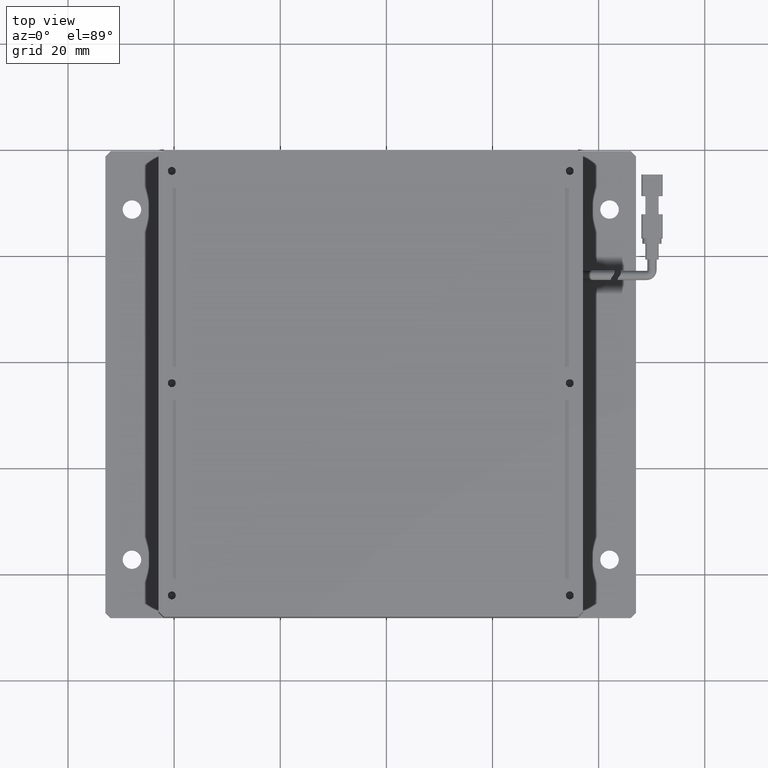
[diagram: clean part render]
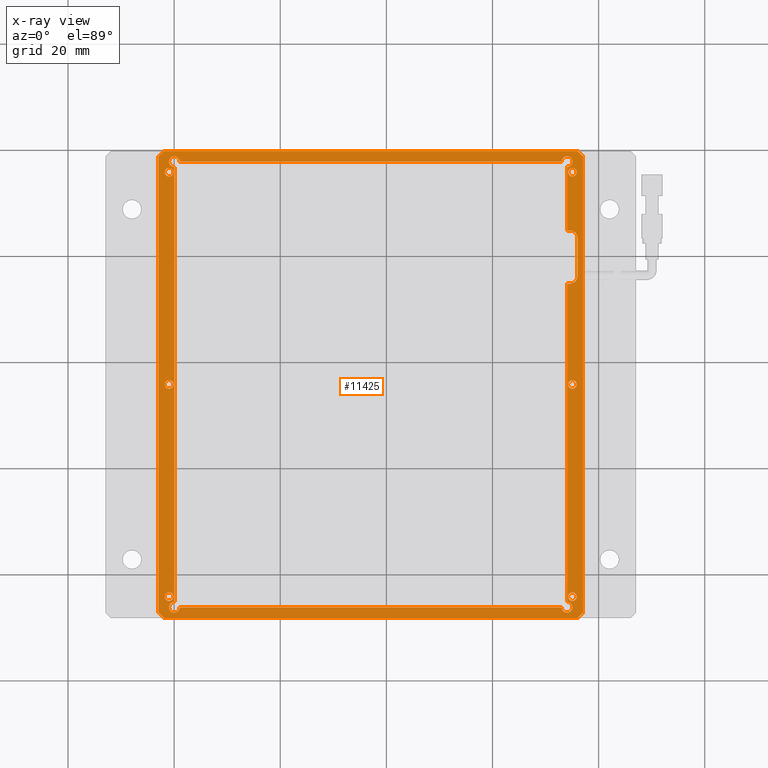
[diagram: x-ray — body ghosted, one internal face saturated and labeled with its STEP entity id]
A machine part, top view, then the same camera in x-ray: the body is ghosted and one INTERNAL B-rep face — a face not visible from any outside direction — is saturated and labeled: STEP entity #11425.
In plain terms, the highlighted planar face has unit normal (0, 0, -1).
Its self-contained STEP definition (entity closure, byte-faithful):
#14 = ORIENTED_EDGE ( 'NONE', *, *, #10379, .T. ) ;
#94 = CIRCLE ( 'NONE', #3871, 0.7999999999999986000 ) ;
#96 = CARTESIAN_POINT ( 'NONE',  ( 55.05231004200074800, -44.20007636502477800, -4.547577592273199800E-012 ) ) ;
#98 = CARTESIAN_POINT ( 'NONE',  ( -21.74768995799924600, 35.79992363497524400, -4.547577592273199800E-012 ) ) ;
#155 = DIRECTION ( 'NONE',  ( 0.0000000000000000000, 0.0000000000000000000, 1.000000000000000000 ) ) ;
#158 = LINE ( 'NONE', #10646, #7629 ) ;
#179 = DIRECTION ( 'NONE',  ( -1.000000000000000000, 0.0000000000000000000, 0.0000000000000000000 ) ) ;
#280 = CIRCLE ( 'NONE', #12288, 0.7999999999999951600 ) ;
#333 = CARTESIAN_POINT ( 'NONE',  ( 55.05231004200074800, -4.200076365024778500, -4.547577592273199800E-012 ) ) ;
#343 = DIRECTION ( 'NONE',  ( 0.7071067811865408000, 0.7071067811865541200, 0.0000000000000000000 ) ) ;
#379 = AXIS2_PLACEMENT_3D ( 'NONE', #957, #10678, #2328 ) ;
#569 = LINE ( 'NONE', #771, #7595 ) ;
#597 = CIRCLE ( 'NONE', #8011, 0.7999999999999951600 ) ;
#637 = ORIENTED_EDGE ( 'NONE', *, *, #7522, .T. ) ;
#669 = DIRECTION ( 'NONE',  ( 1.000000000000000000, -0.0000000000000000000, 0.0000000000000000000 ) ) ;
#771 = CARTESIAN_POINT ( 'NONE',  ( -22.94768995799925900, 38.79992363497520100, -4.547577592273199800E-012 ) ) ;
#795 = VERTEX_POINT ( 'NONE', #3649 ) ;
#809 = DIRECTION ( 'NONE',  ( 0.0000000000000000000, 0.0000000000000000000, 1.000000000000000000 ) ) ;
#957 = CARTESIAN_POINT ( 'NONE',  ( -19.94768995799928700, 37.79992363497522900, -4.547577592273199800E-012 ) ) ;
#1077 = VERTEX_POINT ( 'NONE', #6745 ) ;
#1086 = ORIENTED_EDGE ( 'NONE', *, *, #16838, .T. ) ;
#1122 = CARTESIAN_POINT ( 'NONE',  ( -20.94768995799928700, 37.79992363497522900, -4.547577592273199800E-012 ) ) ;
#1123 = EDGE_CURVE ( 'NONE', #4842, #17763, #94, .T. ) ;
#1268 = CARTESIAN_POINT ( 'NONE',  ( 53.05231004200079100, -46.20007636502479200, -4.547577592273199800E-012 ) ) ;
#1269 = AXIS2_PLACEMENT_3D ( 'NONE', #96, #155, #179 ) ;
#1364 = EDGE_LOOP ( 'NONE', ( #1550, #5323, #17077, #14568, #10162, #6193, #4690, #6588, #5433, #6382, #13417, #11874, #15836, #637, #3973, #8566 ) ) ;
#1404 = CIRCLE ( 'NONE', #379, 0.9999999999999974500 ) ;
#1550 = ORIENTED_EDGE ( 'NONE', *, *, #14940, .T. ) ;
#1555 = ORIENTED_EDGE ( 'NONE', *, *, #14249, .T. ) ;
#1579 = VERTEX_POINT ( 'NONE', #6132 ) ;
#1594 = VERTEX_POINT ( 'NONE', #1268 ) ;
#1614 = AXIS2_PLACEMENT_3D ( 'NONE', #11526, #3283, #12854 ) ;
#1774 = DIRECTION ( 'NONE',  ( -1.000000000000000000, 0.0000000000000000000, 0.0000000000000000000 ) ) ;
#1808 = VERTEX_POINT ( 'NONE', #10549 ) ;
#1861 = CARTESIAN_POINT ( 'NONE',  ( 54.05231004200079100, 14.79992363497521200, -4.547577592273199800E-012 ) ) ;
#1882 = VECTOR ( 'NONE', #13733, 1000.000000000000000 ) ;
#1919 = EDGE_LOOP ( 'NONE', ( #1555, #14 ) ) ;
#1977 = CIRCLE ( 'NONE', #2837, 0.9999999999999974500 ) ;
#2003 = DIRECTION ( 'NONE',  ( -0.0000000000000000000, -1.000000000000000000, 0.0000000000000000000 ) ) ;
#2024 = CARTESIAN_POINT ( 'NONE',  ( 55.05231004200074800, 35.79992363497521500, -4.547577592273199800E-012 ) ) ;
#2083 = DIRECTION ( 'NONE',  ( -1.000000000000000000, 0.0000000000000000000, 0.0000000000000000000 ) ) ;
#2097 = DIRECTION ( 'NONE',  ( 0.0000000000000000000, 0.0000000000000000000, 1.000000000000000000 ) ) ;
#2135 = CARTESIAN_POINT ( 'NONE',  ( -20.94768995799924800, -44.20007636502477800, -4.547577592273199800E-012 ) ) ;
#2169 = VECTOR ( 'NONE', #8421, 1000.000000000000100 ) ;
#2207 = EDGE_CURVE ( 'NONE', #9410, #1808, #10492, .T. ) ;
#2328 = DIRECTION ( 'NONE',  ( -1.000000000000000000, 0.0000000000000000000, 0.0000000000000000000 ) ) ;
#2404 = ORIENTED_EDGE ( 'NONE', *, *, #6658, .T. ) ;
#2795 = EDGE_CURVE ( 'NONE', #8313, #3058, #11244, .T. ) ;
#2802 = FACE_BOUND ( 'NONE', #13784, .T. ) ;
#2837 = AXIS2_PLACEMENT_3D ( 'NONE', #7095, #16577, #8470 ) ;
#2911 = CARTESIAN_POINT ( 'NONE',  ( 53.05231004200079100, 37.79992363497522900, -4.547577592273199800E-012 ) ) ;
#2936 = ORIENTED_EDGE ( 'NONE', *, *, #2207, .T. ) ;
#2984 = CARTESIAN_POINT ( 'NONE',  ( -20.14768995799924800, -44.20007636502477800, -4.547577592273199800E-012 ) ) ;
#2987 = EDGE_CURVE ( 'NONE', #4050, #3069, #17305, .T. ) ;
#3058 = VERTEX_POINT ( 'NONE', #16810 ) ;
#3069 = VERTEX_POINT ( 'NONE', #17035 ) ;
#3100 = ORIENTED_EDGE ( 'NONE', *, *, #4835, .T. ) ;
#3217 = CARTESIAN_POINT ( 'NONE',  ( -22.94768995799924500, -47.20007636502478500, -4.550179677487165000E-012 ) ) ;
#3283 = DIRECTION ( 'NONE',  ( 0.0000000000000000000, 0.0000000000000000000, 1.000000000000000000 ) ) ;
#3346 = VERTEX_POINT ( 'NONE', #16251 ) ;
#3395 = CARTESIAN_POINT ( 'NONE',  ( 54.55231004200074800, 16.29992363497521200, -4.547577592273199800E-012 ) ) ;
#3458 = DIRECTION ( 'NONE',  ( -1.000000000000000000, 0.0000000000000000000, 0.0000000000000000000 ) ) ;
#3495 = CARTESIAN_POINT ( 'NONE',  ( -22.94768995799924800, 39.79992363497522200, -4.547577592273199800E-012 ) ) ;
#3613 = LINE ( 'NONE', #9299, #17672 ) ;
#3649 = CARTESIAN_POINT ( 'NONE',  ( 54.25231004200075800, 35.79992363497521500, -4.547577592273199800E-012 ) ) ;
#3671 = VECTOR ( 'NONE', #16054, 1000.000000000000000 ) ;
#3711 = CARTESIAN_POINT ( 'NONE',  ( 56.05231004200074800, 23.29992363497523300, -4.547577592273199800E-012 ) ) ;
#3751 = CARTESIAN_POINT ( 'NONE',  ( 54.05231004200079100, 36.79992363497522900, -4.547577592273199800E-012 ) ) ;
#3871 = AXIS2_PLACEMENT_3D ( 'NONE', #10608, #10732, #10867 ) ;
#3888 = AXIS2_PLACEMENT_3D ( 'NONE', #5314, #14778, #6672 ) ;
#3973 = ORIENTED_EDGE ( 'NONE', *, *, #16128, .T. ) ;
#4050 = VERTEX_POINT ( 'NONE', #3217 ) ;
#4097 = CARTESIAN_POINT ( 'NONE',  ( -21.74768995799924600, -44.20007636502477800, -4.547577592273199800E-012 ) ) ;
#4202 = DIRECTION ( 'NONE',  ( -0.7071067811865474600, 0.7071067811865474600, 0.0000000000000000000 ) ) ;
#4309 = ORIENTED_EDGE ( 'NONE', *, *, #2987, .T. ) ;
#4341 = EDGE_CURVE ( 'NONE', #1579, #14352, #158, .T. ) ;
#4468 = CARTESIAN_POINT ( 'NONE',  ( 55.05231004200074800, -44.20007636502477800, -4.547577592273199800E-012 ) ) ;
#4592 = CIRCLE ( 'NONE', #8174, 0.7999999999999986000 ) ;
#4636 = ORIENTED_EDGE ( 'NONE', *, *, #15336, .T. ) ;
#4647 = ORIENTED_EDGE ( 'NONE', *, *, #16264, .T. ) ;
#4652 = CARTESIAN_POINT ( 'NONE',  ( -21.74768995799924600, -4.200076365024778500, -4.547577592273199800E-012 ) ) ;
#4676 = VERTEX_POINT ( 'NONE', #3751 ) ;
#4690 = ORIENTED_EDGE ( 'NONE', *, *, #9516, .T. ) ;
#4738 = EDGE_CURVE ( 'NONE', #15070, #11116, #4592, .T. ) ;
#4752 = CIRCLE ( 'NONE', #17131, 0.9999999999999974500 ) ;
#4792 = DIRECTION ( 'NONE',  ( 0.0000000000000000000, 1.000000000000000000, 0.0000000000000000000 ) ) ;
#4830 = DIRECTION ( 'NONE',  ( 1.000000000000000000, 0.0000000000000000000, 0.0000000000000000000 ) ) ;
#4835 = EDGE_CURVE ( 'NONE', #3069, #12722, #569, .T. ) ;
#4842 = VERTEX_POINT ( 'NONE', #98 ) ;
#4881 = VECTOR ( 'NONE', #7822, 1000.000000000000000 ) ;
#4904 = VERTEX_POINT ( 'NONE', #8523 ) ;
#4907 = LINE ( 'NONE', #15831, #5377 ) ;
#4934 = DIRECTION ( 'NONE',  ( -1.000000000000000000, 0.0000000000000000000, -0.0000000000000000000 ) ) ;
#5029 = EDGE_CURVE ( 'NONE', #6687, #6999, #14146, .T. ) ;
#5046 = EDGE_CURVE ( 'NONE', #6168, #16969, #5235, .T. ) ;
#5052 = CARTESIAN_POINT ( 'NONE',  ( -20.94768995799924800, 35.79992363497524400, -4.547577592273199800E-012 ) ) ;
#5090 = EDGE_CURVE ( 'NONE', #4676, #6948, #10347, .T. ) ;
#5204 = CARTESIAN_POINT ( 'NONE',  ( -20.94768995799924800, -44.20007636502477800, -4.547577592273199800E-012 ) ) ;
#5235 = LINE ( 'NONE', #14015, #1882 ) ;
#5314 = CARTESIAN_POINT ( 'NONE',  ( 55.05231004200074800, 35.79992363497521500, -4.547577592273199800E-012 ) ) ;
#5323 = ORIENTED_EDGE ( 'NONE', *, *, #2795, .T. ) ;
#5377 = VECTOR ( 'NONE', #9090, 1000.000000000000000 ) ;
#5433 = ORIENTED_EDGE ( 'NONE', *, *, #5623, .T. ) ;
#5576 = ORIENTED_EDGE ( 'NONE', *, *, #5029, .T. ) ;
#5623 = EDGE_CURVE ( 'NONE', #6609, #12134, #3613, .T. ) ;
#5820 = DIRECTION ( 'NONE',  ( -1.000000000000000000, 0.0000000000000000000, -0.0000000000000000000 ) ) ;
#5871 = DIRECTION ( 'NONE',  ( -1.000000000000000000, 0.0000000000000000000, 0.0000000000000000000 ) ) ;
#6063 = CARTESIAN_POINT ( 'NONE',  ( 56.05231004200076200, 39.79992363497522200, -4.548878634880182400E-012 ) ) ;
#6096 = CIRCLE ( 'NONE', #16219, 1.500000000000001300 ) ;
#6112 = FACE_BOUND ( 'NONE', #1364, .T. ) ;
#6132 = CARTESIAN_POINT ( 'NONE',  ( 54.05231004200079100, -45.20007636502478500, -4.547577592273199800E-012 ) ) ;
#6168 = VERTEX_POINT ( 'NONE', #17453 ) ;
#6193 = ORIENTED_EDGE ( 'NONE', *, *, #4341, .T. ) ;
#6234 = VECTOR ( 'NONE', #669, 1000.000000000000000 ) ;
#6293 = VERTEX_POINT ( 'NONE', #16385 ) ;
#6338 = ORIENTED_EDGE ( 'NONE', *, *, #15430, .T. ) ;
#6352 = VECTOR ( 'NONE', #4202, 1000.000000000000100 ) ;
#6382 = ORIENTED_EDGE ( 'NONE', *, *, #14258, .T. ) ;
#6423 = DIRECTION ( 'NONE',  ( -1.000000000000000000, 0.0000000000000000000, 0.0000000000000000000 ) ) ;
#6551 = FACE_BOUND ( 'NONE', #10581, .T. ) ;
#6569 = DIRECTION ( 'NONE',  ( -1.000000000000000000, 0.0000000000000000000, 0.0000000000000000000 ) ) ;
#6588 = ORIENTED_EDGE ( 'NONE', *, *, #7706, .T. ) ;
#6609 = VERTEX_POINT ( 'NONE', #13134 ) ;
#6658 = EDGE_CURVE ( 'NONE', #13119, #6687, #15313, .T. ) ;
#6672 = DIRECTION ( 'NONE',  ( -1.000000000000000000, 0.0000000000000000000, 0.0000000000000000000 ) ) ;
#6687 = VERTEX_POINT ( 'NONE', #10563 ) ;
#6708 = DIRECTION ( 'NONE',  ( 0.0000000000000000000, 0.0000000000000000000, 1.000000000000000000 ) ) ;
#6745 = CARTESIAN_POINT ( 'NONE',  ( -18.94768995799928700, 37.79992363497524400, -4.547577592273199800E-012 ) ) ;
#6948 = VERTEX_POINT ( 'NONE', #2911 ) ;
#6953 = DIRECTION ( 'NONE',  ( 0.0000000000000000000, 0.0000000000000000000, 1.000000000000000000 ) ) ;
#6996 = FACE_OUTER_BOUND ( 'NONE', #12720, .T. ) ;
#6999 = VERTEX_POINT ( 'NONE', #13967 ) ;
#7040 = CARTESIAN_POINT ( 'NONE',  ( -20.94768995799924800, -4.200076365024778500, -4.547577592273199800E-012 ) ) ;
#7075 = VERTEX_POINT ( 'NONE', #6063 ) ;
#7095 = CARTESIAN_POINT ( 'NONE',  ( -19.94768995799928700, -46.20007636502478500, -4.547577592273199800E-012 ) ) ;
#7113 = EDGE_CURVE ( 'NONE', #16969, #4676, #7874, .T. ) ;
#7421 = LINE ( 'NONE', #17614, #16115 ) ;
#7440 = CIRCLE ( 'NONE', #17581, 0.7999999999999951600 ) ;
#7442 = CARTESIAN_POINT ( 'NONE',  ( 55.05231004200074800, -4.200076365024778500, -4.547577592273199800E-012 ) ) ;
#7522 = EDGE_CURVE ( 'NONE', #6948, #1077, #14388, .T. ) ;
#7595 = VECTOR ( 'NONE', #343, 1000.000000000000100 ) ;
#7629 = VECTOR ( 'NONE', #9425, 1000.000000000000000 ) ;
#7638 = ORIENTED_EDGE ( 'NONE', *, *, #10247, .T. ) ;
#7706 = EDGE_CURVE ( 'NONE', #17366, #6609, #6096, .T. ) ;
#7822 = DIRECTION ( 'NONE',  ( -0.7071067811865524600, -0.7071067811865426900, 0.0000000000000000000 ) ) ;
#7874 = LINE ( 'NONE', #14305, #11085 ) ;
#8011 = AXIS2_PLACEMENT_3D ( 'NONE', #2024, #11707, #3458 ) ;
#8150 = EDGE_CURVE ( 'NONE', #15472, #16324, #12836, .T. ) ;
#8174 = AXIS2_PLACEMENT_3D ( 'NONE', #2135, #2097, #2083 ) ;
#8313 = VERTEX_POINT ( 'NONE', #8689 ) ;
#8407 = DIRECTION ( 'NONE',  ( -1.000000000000000000, 0.0000000000000000000, 0.0000000000000000000 ) ) ;
#8421 = DIRECTION ( 'NONE',  ( 0.7071067811865474600, -0.7071067811865474600, 0.0000000000000000000 ) ) ;
#8470 = DIRECTION ( 'NONE',  ( -1.000000000000000000, 0.0000000000000000000, 0.0000000000000000000 ) ) ;
#8523 = CARTESIAN_POINT ( 'NONE',  ( 57.05231004200075500, 38.79992363497521500, -4.550179677487165000E-012 ) ) ;
#8566 = ORIENTED_EDGE ( 'NONE', *, *, #13158, .T. ) ;
#8608 = CARTESIAN_POINT ( 'NONE',  ( -19.94768995799928700, -46.20007636502478500, -4.547577592273199800E-012 ) ) ;
#8620 = ORIENTED_EDGE ( 'NONE', *, *, #17701, .T. ) ;
#8667 = DIRECTION ( 'NONE',  ( 0.0000000000000000000, 0.0000000000000000000, 1.000000000000000000 ) ) ;
#8689 = CARTESIAN_POINT ( 'NONE',  ( -19.94768995799928700, -45.20007636502478500, -4.547577592273199800E-012 ) ) ;
#8737 = AXIS2_PLACEMENT_3D ( 'NONE', #14816, #6708, #16209 ) ;
#8754 = CIRCLE ( 'NONE', #17535, 0.7999999999999951600 ) ;
#8795 = DIRECTION ( 'NONE',  ( -1.000000000000000000, 0.0000000000000000000, 0.0000000000000000000 ) ) ;
#8982 = EDGE_CURVE ( 'NONE', #16604, #1594, #9893, .T. ) ;
#9014 = DIRECTION ( 'NONE',  ( -1.000000000000000000, 0.0000000000000000000, 0.0000000000000000000 ) ) ;
#9055 = CARTESIAN_POINT ( 'NONE',  ( 57.05231004200074100, -47.20007636502480600, -4.548228113576691100E-012 ) ) ;
#9083 = VERTEX_POINT ( 'NONE', #13193 ) ;
#9090 = DIRECTION ( 'NONE',  ( 1.000000000000000000, 0.0000000000000000000, 0.0000000000000000000 ) ) ;
#9093 = CARTESIAN_POINT ( 'NONE',  ( -20.14768995799924800, 35.79992363497524400, -4.547577592273199800E-012 ) ) ;
#9158 = CARTESIAN_POINT ( 'NONE',  ( -20.94768995799924800, -4.200076365024778500, -4.547577592273199800E-012 ) ) ;
#9210 = AXIS2_PLACEMENT_3D ( 'NONE', #8608, #8667, #9014 ) ;
#9299 = CARTESIAN_POINT ( 'NONE',  ( 56.05231004200074800, 39.79992363497522200, -4.547577592273199800E-012 ) ) ;
#9410 = VERTEX_POINT ( 'NONE', #12906 ) ;
#9425 = DIRECTION ( 'NONE',  ( 0.0000000000000000000, 1.000000000000000000, 0.0000000000000000000 ) ) ;
#9516 = EDGE_CURVE ( 'NONE', #14352, #17366, #4907, .T. ) ;
#9649 = CARTESIAN_POINT ( 'NONE',  ( -19.94768995799928700, 36.79992363497522900, -4.547577592273199800E-012 ) ) ;
#9767 = FACE_BOUND ( 'NONE', #11100, .T. ) ;
#9889 = CARTESIAN_POINT ( 'NONE',  ( -22.94768995799924800, 37.79992363497522900, -4.547577592273199800E-012 ) ) ;
#9893 = LINE ( 'NONE', #17095, #6234 ) ;
#10082 = DIRECTION ( 'NONE',  ( 0.0000000000000000000, 0.0000000000000000000, 1.000000000000000000 ) ) ;
#10162 = ORIENTED_EDGE ( 'NONE', *, *, #14509, .T. ) ;
#10174 = AXIS2_PLACEMENT_3D ( 'NONE', #5204, #14677, #6569 ) ;
#10186 = VECTOR ( 'NONE', #2003, 1000.000000000000000 ) ;
#10230 = AXIS2_PLACEMENT_3D ( 'NONE', #11209, #11180, #11163 ) ;
#10243 = EDGE_CURVE ( 'NONE', #6999, #4050, #16747, .T. ) ;
#10247 = EDGE_CURVE ( 'NONE', #7075, #4904, #13143, .T. ) ;
#10256 = LINE ( 'NONE', #17201, #17402 ) ;
#10347 = CIRCLE ( 'NONE', #10230, 1.000000000000000900 ) ;
#10375 = VECTOR ( 'NONE', #5820, 1000.000000000000000 ) ;
#10379 = EDGE_CURVE ( 'NONE', #9083, #3346, #7440, .T. ) ;
#10492 = CIRCLE ( 'NONE', #1269, 0.7999999999999951600 ) ;
#10524 = DIRECTION ( 'NONE',  ( -1.000000000000000000, 0.0000000000000000000, 0.0000000000000000000 ) ) ;
#10549 = CARTESIAN_POINT ( 'NONE',  ( 54.25231004200075800, -44.20007636502477800, -4.547577592273199800E-012 ) ) ;
#10563 = CARTESIAN_POINT ( 'NONE',  ( 56.05231004200073400, -48.20007636502477800, -4.550179677487165000E-012 ) ) ;
#10581 = EDGE_LOOP ( 'NONE', ( #15225, #15025 ) ) ;
#10608 = CARTESIAN_POINT ( 'NONE',  ( -20.94768995799924800, 35.79992363497524400, -4.547577592273199800E-012 ) ) ;
#10646 = CARTESIAN_POINT ( 'NONE',  ( 54.05231004200079100, 39.79992363497522200, -4.547577592273199800E-012 ) ) ;
#10675 = DIRECTION ( 'NONE',  ( 0.0000000000000000000, 1.000000000000000000, 0.0000000000000000000 ) ) ;
#10678 = DIRECTION ( 'NONE',  ( 0.0000000000000000000, 0.0000000000000000000, 1.000000000000000000 ) ) ;
#10732 = DIRECTION ( 'NONE',  ( 0.0000000000000000000, 0.0000000000000000000, 1.000000000000000000 ) ) ;
#10837 = CIRCLE ( 'NONE', #11588, 0.7999999999999986000 ) ;
#10867 = DIRECTION ( 'NONE',  ( -1.000000000000000000, 0.0000000000000000000, 0.0000000000000000000 ) ) ;
#10872 = CARTESIAN_POINT ( 'NONE',  ( -20.14768995799924800, -4.200076365024778500, -4.547577592273199800E-012 ) ) ;
#10998 = CARTESIAN_POINT ( 'NONE',  ( -21.94768995799926300, 39.79992363497522200, -4.550179677487165000E-012 ) ) ;
#11014 = ORIENTED_EDGE ( 'NONE', *, *, #4738, .T. ) ;
#11076 = VERTEX_POINT ( 'NONE', #1122 ) ;
#11085 = VECTOR ( 'NONE', #4792, 1000.000000000000000 ) ;
#11100 = EDGE_LOOP ( 'NONE', ( #6338, #8620 ) ) ;
#11116 = VERTEX_POINT ( 'NONE', #4097 ) ;
#11139 = VERTEX_POINT ( 'NONE', #9649 ) ;
#11163 = DIRECTION ( 'NONE',  ( -1.000000000000000000, 0.0000000000000000000, 0.0000000000000000000 ) ) ;
#11180 = DIRECTION ( 'NONE',  ( 0.0000000000000000000, 0.0000000000000000000, 1.000000000000000000 ) ) ;
#11209 = CARTESIAN_POINT ( 'NONE',  ( 54.05231004200079100, 37.79992363497522900, -4.547577592273199800E-012 ) ) ;
#11244 = CIRCLE ( 'NONE', #9210, 0.9999999999999974500 ) ;
#11423 = EDGE_CURVE ( 'NONE', #4904, #13119, #17330, .T. ) ;
#11425 = ADVANCED_FACE ( 'NONE', ( #6996, #13777, #6551, #2802, #16920, #13325, #9767, #6112 ), #11613, .T. ) ;
#11492 = CIRCLE ( 'NONE', #8737, 1.000000000000000900 ) ;
#11526 = CARTESIAN_POINT ( 'NONE',  ( 54.55231004200074800, 23.29992363497523300, -4.547577592273199800E-012 ) ) ;
#11588 = AXIS2_PLACEMENT_3D ( 'NONE', #5052, #14543, #6423 ) ;
#11613 = PLANE ( 'NONE',  #12198 ) ;
#11707 = DIRECTION ( 'NONE',  ( 0.0000000000000000000, 0.0000000000000000000, 1.000000000000000000 ) ) ;
#11874 = ORIENTED_EDGE ( 'NONE', *, *, #7113, .T. ) ;
#12134 = VERTEX_POINT ( 'NONE', #3711 ) ;
#12145 = CARTESIAN_POINT ( 'NONE',  ( 54.05231004200079100, 24.79992363497521900, -4.547577592273199800E-012 ) ) ;
#12198 = AXIS2_PLACEMENT_3D ( 'NONE', #3495, #13059, #4934 ) ;
#12269 = DIRECTION ( 'NONE',  ( -0.0000000000000000000, -1.000000000000000000, -0.0000000000000000000 ) ) ;
#12288 = AXIS2_PLACEMENT_3D ( 'NONE', #4468, #13992, #5871 ) ;
#12343 = AXIS2_PLACEMENT_3D ( 'NONE', #7040, #16511, #8407 ) ;
#12356 = CIRCLE ( 'NONE', #1614, 1.500000000000001300 ) ;
#12431 = CARTESIAN_POINT ( 'NONE',  ( -21.94768995799924800, -48.20007636502477800, -4.547577592273199800E-012 ) ) ;
#12555 = EDGE_CURVE ( 'NONE', #11116, #15070, #13494, .T. ) ;
#12570 = AXIS2_PLACEMENT_3D ( 'NONE', #9158, #809, #10524 ) ;
#12580 = CIRCLE ( 'NONE', #12570, 0.7999999999999986000 ) ;
#12720 = EDGE_LOOP ( 'NONE', ( #5576, #16369, #4309, #3100, #1086, #7638, #13915, #2404 ) ) ;
#12722 = VERTEX_POINT ( 'NONE', #10998 ) ;
#12836 = CIRCLE ( 'NONE', #12343, 0.7999999999999986000 ) ;
#12854 = DIRECTION ( 'NONE',  ( 1.000000000000000000, 0.0000000000000000000, 0.0000000000000000000 ) ) ;
#12906 = CARTESIAN_POINT ( 'NONE',  ( 55.85231004200074500, -44.20007636502477800, -4.547577592273199800E-012 ) ) ;
#12964 = DIRECTION ( 'NONE',  ( 0.0000000000000000000, 0.0000000000000000000, 1.000000000000000000 ) ) ;
#13059 = DIRECTION ( 'NONE',  ( 0.0000000000000000000, 0.0000000000000000000, -1.000000000000000000 ) ) ;
#13119 = VERTEX_POINT ( 'NONE', #9055 ) ;
#13123 = DIRECTION ( 'NONE',  ( 1.000000000000000000, 0.0000000000000000000, 0.0000000000000000000 ) ) ;
#13134 = CARTESIAN_POINT ( 'NONE',  ( 56.05231004200074800, 16.29992363497521200, -4.547577592273199800E-012 ) ) ;
#13143 = LINE ( 'NONE', #15162, #2169 ) ;
#13158 = EDGE_CURVE ( 'NONE', #11076, #11139, #1404, .T. ) ;
#13173 = EDGE_LOOP ( 'NONE', ( #13814, #11014 ) ) ;
#13193 = CARTESIAN_POINT ( 'NONE',  ( 55.85231004200074500, -4.200076365024778500, -4.547577592273199800E-012 ) ) ;
#13282 = CARTESIAN_POINT ( 'NONE',  ( 54.55231004200074800, 14.79992363497521200, -4.547577592273199800E-012 ) ) ;
#13325 = FACE_BOUND ( 'NONE', #1919, .T. ) ;
#13417 = ORIENTED_EDGE ( 'NONE', *, *, #5046, .T. ) ;
#13437 = CARTESIAN_POINT ( 'NONE',  ( -18.94768995799929100, -46.20007636502479900, -4.547577592273199800E-012 ) ) ;
#13494 = CIRCLE ( 'NONE', #10174, 0.7999999999999986000 ) ;
#13603 = EDGE_CURVE ( 'NONE', #16324, #15472, #12580, .T. ) ;
#13733 = DIRECTION ( 'NONE',  ( -1.000000000000000000, 0.0000000000000000000, -0.0000000000000000000 ) ) ;
#13777 = FACE_BOUND ( 'NONE', #13173, .T. ) ;
#13784 = EDGE_LOOP ( 'NONE', ( #14686, #4636 ) ) ;
#13814 = ORIENTED_EDGE ( 'NONE', *, *, #12555, .T. ) ;
#13915 = ORIENTED_EDGE ( 'NONE', *, *, #11423, .T. ) ;
#13967 = CARTESIAN_POINT ( 'NONE',  ( -21.94768995799925200, -48.20007636502477800, -4.548228113576691100E-012 ) ) ;
#13992 = DIRECTION ( 'NONE',  ( 0.0000000000000000000, 0.0000000000000000000, 1.000000000000000000 ) ) ;
#14015 = CARTESIAN_POINT ( 'NONE',  ( 56.05231004200074800, 24.79992363497521900, -4.547577592273199800E-012 ) ) ;
#14097 = DIRECTION ( 'NONE',  ( -0.0000000000000000000, 1.000000000000000000, 0.0000000000000000000 ) ) ;
#14146 = LINE ( 'NONE', #15911, #3671 ) ;
#14249 = EDGE_CURVE ( 'NONE', #3346, #9083, #8754, .T. ) ;
#14258 = EDGE_CURVE ( 'NONE', #12134, #6168, #12356, .T. ) ;
#14305 = CARTESIAN_POINT ( 'NONE',  ( 54.05231004200079100, 39.79992363497522200, -4.547577592273199800E-012 ) ) ;
#14352 = VERTEX_POINT ( 'NONE', #1861 ) ;
#14388 = LINE ( 'NONE', #9889, #10375 ) ;
#14509 = EDGE_CURVE ( 'NONE', #1594, #1579, #11492, .T. ) ;
#14543 = DIRECTION ( 'NONE',  ( 0.0000000000000000000, 0.0000000000000000000, 1.000000000000000000 ) ) ;
#14568 = ORIENTED_EDGE ( 'NONE', *, *, #8982, .T. ) ;
#14677 = DIRECTION ( 'NONE',  ( 0.0000000000000000000, 0.0000000000000000000, 1.000000000000000000 ) ) ;
#14686 = ORIENTED_EDGE ( 'NONE', *, *, #1123, .T. ) ;
#14778 = DIRECTION ( 'NONE',  ( 0.0000000000000000000, 0.0000000000000000000, 1.000000000000000000 ) ) ;
#14816 = CARTESIAN_POINT ( 'NONE',  ( 54.05231004200079100, -46.20007636502478500, -4.547577592273199800E-012 ) ) ;
#14862 = EDGE_LOOP ( 'NONE', ( #4647, #2936 ) ) ;
#14940 = EDGE_CURVE ( 'NONE', #11139, #8313, #7421, .T. ) ;
#15025 = ORIENTED_EDGE ( 'NONE', *, *, #8150, .T. ) ;
#15068 = CARTESIAN_POINT ( 'NONE',  ( -19.94768995799928700, 37.79992363497522900, -4.547577592273199800E-012 ) ) ;
#15070 = VERTEX_POINT ( 'NONE', #2984 ) ;
#15162 = CARTESIAN_POINT ( 'NONE',  ( 56.05231004200076200, 39.79992363497522200, -4.547577592273199800E-012 ) ) ;
#15225 = ORIENTED_EDGE ( 'NONE', *, *, #13603, .T. ) ;
#15313 = LINE ( 'NONE', #15940, #4881 ) ;
#15336 = EDGE_CURVE ( 'NONE', #17763, #4842, #10837, .T. ) ;
#15430 = EDGE_CURVE ( 'NONE', #795, #6293, #17730, .T. ) ;
#15472 = VERTEX_POINT ( 'NONE', #10872 ) ;
#15706 = CARTESIAN_POINT ( 'NONE',  ( 57.05231004200075500, -48.20007636502477800, -4.547577592273199800E-012 ) ) ;
#15831 = CARTESIAN_POINT ( 'NONE',  ( 56.05231004200074800, 14.79992363497521200, -4.547577592273199800E-012 ) ) ;
#15836 = ORIENTED_EDGE ( 'NONE', *, *, #5090, .T. ) ;
#15911 = CARTESIAN_POINT ( 'NONE',  ( -22.94768995799924800, -48.20007636502477800, -4.547577592273199800E-012 ) ) ;
#15940 = CARTESIAN_POINT ( 'NONE',  ( 57.05231004200075500, -47.20007636502479200, -4.547577592273199800E-012 ) ) ;
#16054 = DIRECTION ( 'NONE',  ( -1.000000000000000000, -0.0000000000000000000, 0.0000000000000000000 ) ) ;
#16115 = VECTOR ( 'NONE', #12269, 1000.000000000000000 ) ;
#16128 = EDGE_CURVE ( 'NONE', #1077, #11076, #4752, .T. ) ;
#16209 = DIRECTION ( 'NONE',  ( -1.000000000000000000, -6.938893903907222100E-015, 0.0000000000000000000 ) ) ;
#16219 = AXIS2_PLACEMENT_3D ( 'NONE', #3395, #12964, #4830 ) ;
#16251 = CARTESIAN_POINT ( 'NONE',  ( 54.25231004200075800, -4.200076365024778500, -4.547577592273199800E-012 ) ) ;
#16264 = EDGE_CURVE ( 'NONE', #1808, #9410, #280, .T. ) ;
#16324 = VERTEX_POINT ( 'NONE', #4652 ) ;
#16369 = ORIENTED_EDGE ( 'NONE', *, *, #10243, .T. ) ;
#16385 = CARTESIAN_POINT ( 'NONE',  ( 55.85231004200074500, 35.79992363497521500, -4.547577592273199800E-012 ) ) ;
#16437 = DIRECTION ( 'NONE',  ( -1.000000000000000000, 0.0000000000000000000, 0.0000000000000000000 ) ) ;
#16511 = DIRECTION ( 'NONE',  ( 0.0000000000000000000, 0.0000000000000000000, 1.000000000000000000 ) ) ;
#16577 = DIRECTION ( 'NONE',  ( 0.0000000000000000000, 0.0000000000000000000, 1.000000000000000000 ) ) ;
#16604 = VERTEX_POINT ( 'NONE', #13437 ) ;
#16747 = LINE ( 'NONE', #12431, #6352 ) ;
#16810 = CARTESIAN_POINT ( 'NONE',  ( -20.94768995799928700, -46.20007636502478500, -4.547577592273199800E-012 ) ) ;
#16838 = EDGE_CURVE ( 'NONE', #12722, #7075, #10256, .T. ) ;
#16889 = DIRECTION ( 'NONE',  ( 0.0000000000000000000, 0.0000000000000000000, 1.000000000000000000 ) ) ;
#16901 = VECTOR ( 'NONE', #14097, 1000.000000000000000 ) ;
#16920 = FACE_BOUND ( 'NONE', #14862, .T. ) ;
#16969 = VERTEX_POINT ( 'NONE', #12145 ) ;
#16997 = CARTESIAN_POINT ( 'NONE',  ( -22.94768995799924800, -48.20007636502477800, -4.547577592273199800E-012 ) ) ;
#17035 = CARTESIAN_POINT ( 'NONE',  ( -22.94768995799925200, 38.79992363497521500, -4.548228113576691100E-012 ) ) ;
#17077 = ORIENTED_EDGE ( 'NONE', *, *, #17139, .T. ) ;
#17095 = CARTESIAN_POINT ( 'NONE',  ( -22.94768995799924800, -46.20007636502479900, -4.547577592273199800E-012 ) ) ;
#17131 = AXIS2_PLACEMENT_3D ( 'NONE', #15068, #6953, #16437 ) ;
#17139 = EDGE_CURVE ( 'NONE', #3058, #16604, #1977, .T. ) ;
#17201 = CARTESIAN_POINT ( 'NONE',  ( -22.94768995799924800, 39.79992363497522200, -4.547577592273199800E-012 ) ) ;
#17305 = LINE ( 'NONE', #16997, #16901 ) ;
#17330 = LINE ( 'NONE', #15706, #10186 ) ;
#17366 = VERTEX_POINT ( 'NONE', #13282 ) ;
#17402 = VECTOR ( 'NONE', #13123, 1000.000000000000000 ) ;
#17453 = CARTESIAN_POINT ( 'NONE',  ( 54.55231004200074800, 24.79992363497521900, -4.547577592273199800E-012 ) ) ;
#17535 = AXIS2_PLACEMENT_3D ( 'NONE', #7442, #16889, #8795 ) ;
#17581 = AXIS2_PLACEMENT_3D ( 'NONE', #333, #10082, #1774 ) ;
#17614 = CARTESIAN_POINT ( 'NONE',  ( -19.94768995799928700, 39.79992363497522200, -4.547577592273199800E-012 ) ) ;
#17672 = VECTOR ( 'NONE', #10675, 1000.000000000000000 ) ;
#17701 = EDGE_CURVE ( 'NONE', #6293, #795, #597, .T. ) ;
#17730 = CIRCLE ( 'NONE', #3888, 0.7999999999999951600 ) ;
#17763 = VERTEX_POINT ( 'NONE', #9093 ) ;